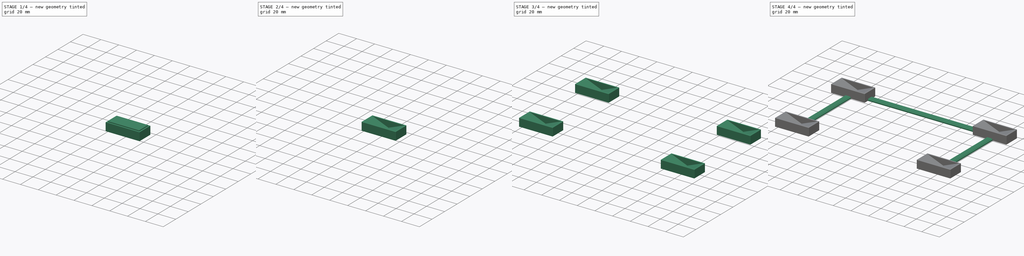
[diagram: build sequence overview — one tinted view per stage of 4, left to right]
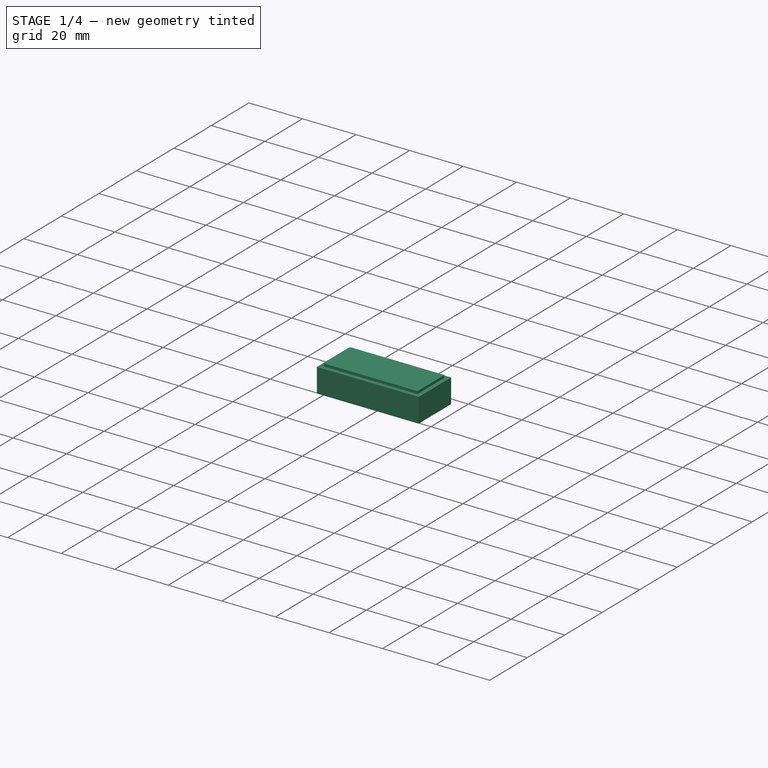
[diagram: stage 1 of 4 — iso view after this stage's code; geometry added in this stage tinted green]
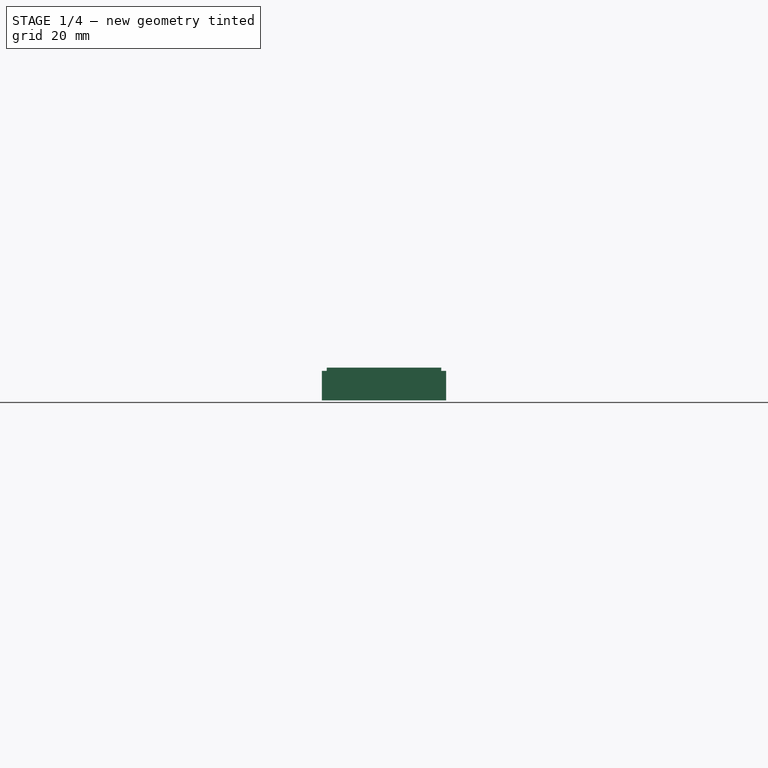
[diagram: stage 1 of 4 — front view after this stage's code; geometry added in this stage tinted green]
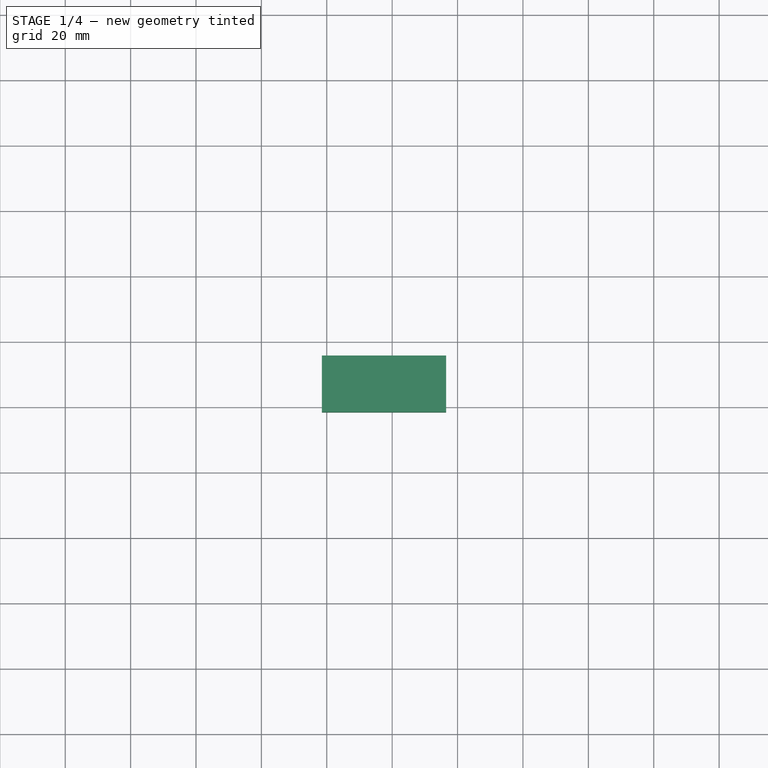
[diagram: stage 1 of 4 — top view after this stage's code; geometry added in this stage tinted green]
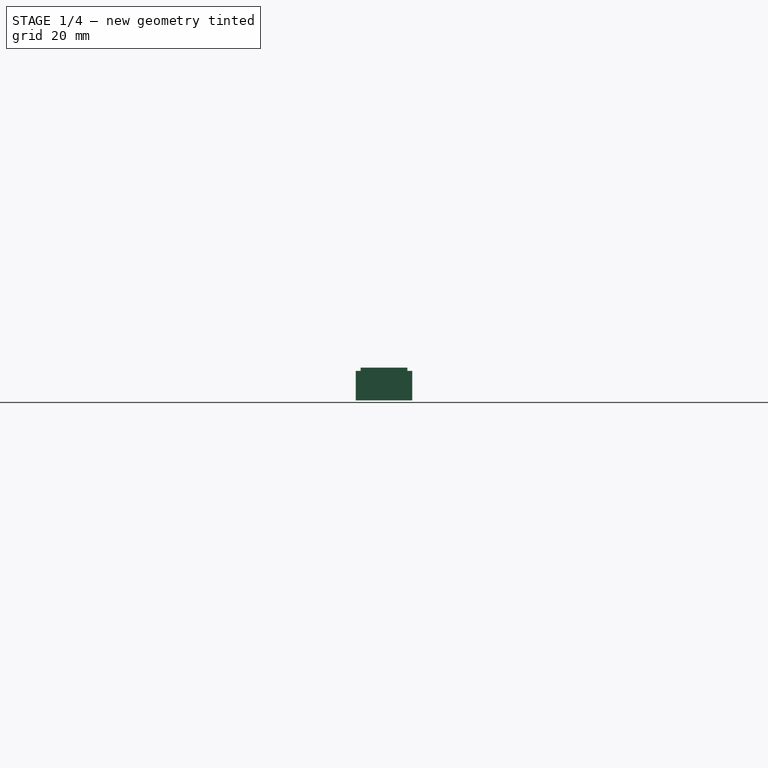
[diagram: stage 1 of 4 — right view after this stage's code; geometry added in this stage tinted green]
FCSTD DOCUMENT  (FreeCAD 0.18R4 (GitTag))
Label: van parking block
License: All rights reserved
LicenseURL: http://en.wikipedia.org/wiki/All_rights_reserved
objects: Sketcher::SketchObject×4, Part::Chamfer×3, Part::Box×2, PartDesign::Body×2, Part::MultiFuse×2, Spreadsheet::Sheet×1, Part::Cut×1, PartDesign::Pad×1, Part::Part2DObjectPython×1, PartDesign::AdditiveLoft×1, Part::FeaturePython×1
note: 20 computed .brp shape members not serialized (recipe doc carries the construction recipe); baked Part::Feature solids carry a one-line shape summary decoded from their .brp

FEATURE [Spreadsheet::Sheet] Spreadsheet  label="Dim"
  cells = A1=tire_thickness; B1(tire_thickness)=14.3; A2=block_width; B2(block_width)=35; A3=block_min; B3(block_min)=2; A4=block_max; B4(block_max)=9; A5=block_outline; B5(block_outline)=1.5; A6=axle_distance; B6(axle_distance)==96 + 64; A7=wheel_distance; B7(wheel_distance)=73; A8=connector_width; B8(connector_width)=7; A9=connector_thickness; B9(connector_thickness)=2
FEATURE [Part::Box] Box  label="Cube"
  AttacherType = Attacher::AttachEngine3D
  Height = 9
  Length = 38
  Placement = pos=(-1.5,-1.5,0) rot=(0,0,1;0rad)
  Width = 17.3
  expr: Placement.Base.y = -Dim.block_outline
  expr: Placement.Base.x = -Dim.block_outline
  expr: Length = Dim.block_width + 2 * Dim.block_outline
  expr: Width = Dim.tire_thickness + 2 * Dim.block_outline
  expr: Height = Dim.block_max
FEATURE [Part::Box] Box001  label="Cube001"
  AttacherType = Attacher::AttachEngine3D
  Height = 10
  Length = 35
  Width = 14.3
  expr: Height = Dim.block_max + 1
  expr: Width = Dim.tire_thickness
  expr: Length = Dim.block_width
FEATURE [Sketcher::SketchObject] Sketch006  label="block_low001"
  Placement = pos=(17.5,0,0) rot=(0.57735,0.57735,0.57735;2.0944rad)
  expr: Placement.Base.x = Dim.block_width / 2
  expr: Constraints[10] = Dim.block_min
  expr: Constraints[9] = Dim.tire_thickness
  sketch-geometry (4):
    g0: LineSegment StartX=0 StartY=0 StartZ=0 EndX=14.3 EndY=0 EndZ=0
    g1: LineSegment StartX=14.3 StartY=0 StartZ=0 EndX=14.3 EndY=2 EndZ=0
    g2: LineSegment StartX=14.3 StartY=2 StartZ=0 EndX=0 EndY=2 EndZ=0
    g3: LineSegment StartX=0 StartY=2 StartZ=0 EndX=0 EndY=0 EndZ=0
  constraints (11):
    c: Coincident(g0,g1)
    c: Coincident(g1,g2)
    c: Coincident(g2,g3)
    c: Coincident(g3,g0)
    c: Horizontal(g0)
    c: Horizontal(g2)
    c: Vertical(g1)
    c: Vertical(g3)
    c: Coincident(g0,g-1)
    c: DistanceX(g2,g2) = 14.3
    c: DistanceY(g1,g1) = 2
FEATURE [Sketcher::SketchObject] Sketch007  label="block_high001"
  MapMode = 5
  Placement = pos=(0,0,0) rot=(0.57735,0.57735,0.57735;2.0944rad)
  Support = -> [YZ_Plane002]
  expr: Constraints[10] = Dim.tire_thickness
  expr: Constraints[9] = Dim.block_max
  sketch-geometry (4):
    g0: LineSegment StartX=0 StartY=0 StartZ=0 EndX=14.3 EndY=0 EndZ=0
    g1: LineSegment StartX=14.3 StartY=0 StartZ=0 EndX=14.3 EndY=9 EndZ=0
    g2: LineSegment StartX=14.3 StartY=9 StartZ=0 EndX=0 EndY=9 EndZ=0
    g3: LineSegment StartX=0 StartY=9 StartZ=0 EndX=0 EndY=0 EndZ=0
  constraints (11):
    c: Coincident(g0,g1)
    c: Coincident(g1,g2)
    c: Coincident(g2,g3)
    c: Coincident(g3,g0)
    c: Horizontal(g0)
    c: Horizontal(g2)
    c: Vertical(g1)
    c: Vertical(g3)
    c: Coincident(g0,g-1)
    c: DistanceY(g3,g3) = 9
    c: DistanceX(g2,g2) = 14.3
FEATURE [Part::Part2DObjectPython] Clone2D001  label="block_high - other001"  # Draft 2D object (typed FeaturePython)
  Fuse = false
  Objects = -> [Sketch007]
  Placement = pos=(35,0,0) rot=(0.57735,0.57735,0.57735;2.0944rad)
  Scale = (1,1,1)
  expr: Placement.Base.x = Dim.block_width
FEATURE [PartDesign::AdditiveLoft] AdditiveLoft001
  Closed = false
  Placement = pos=(0,0,0) rot=(0.57735,0.57735,0.57735;2.0944rad)
  Profile = -> Sketch007
  Refine = true
  Ruled = true
  Sections = -> [Sketch006,Clone2D001]
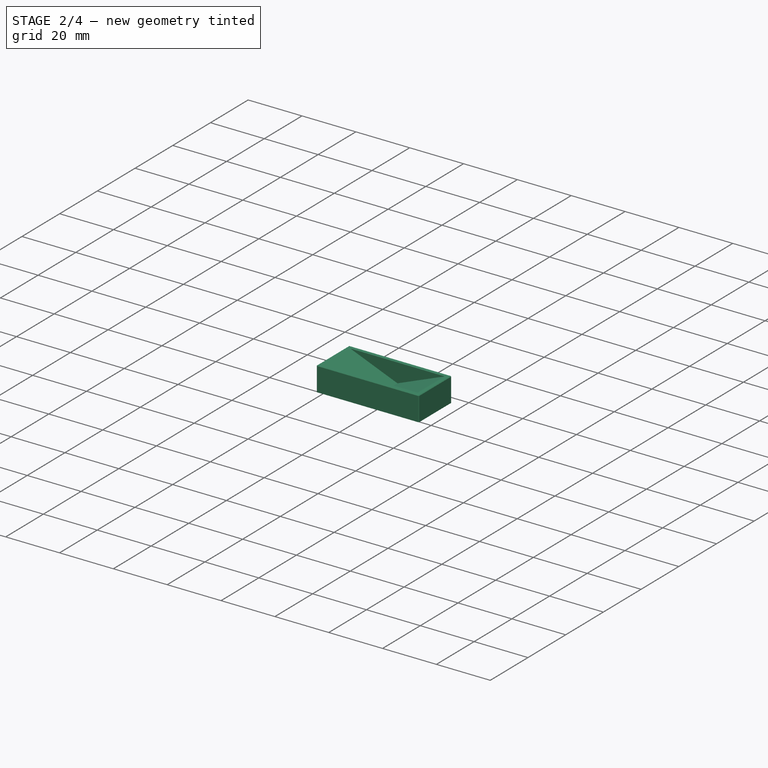
[diagram: stage 2 of 4 — iso view after this stage's code; geometry added in this stage tinted green]
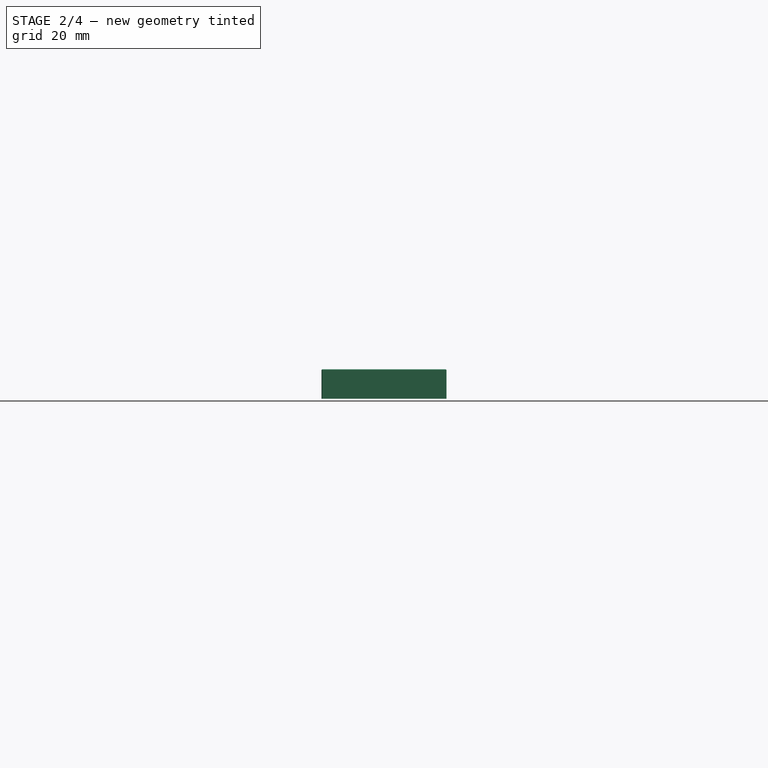
[diagram: stage 2 of 4 — front view after this stage's code; geometry added in this stage tinted green]
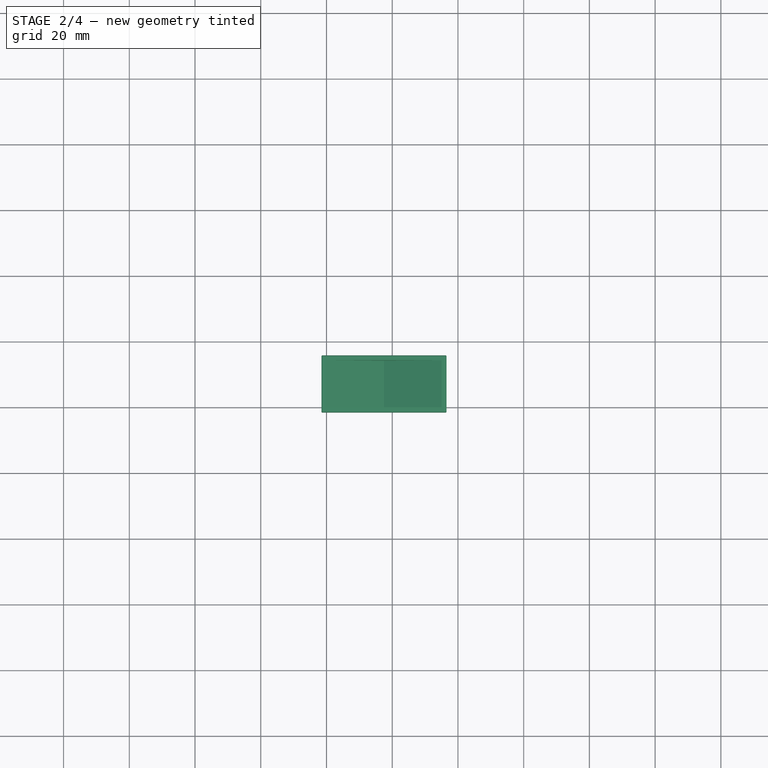
[diagram: stage 2 of 4 — top view after this stage's code; geometry added in this stage tinted green]
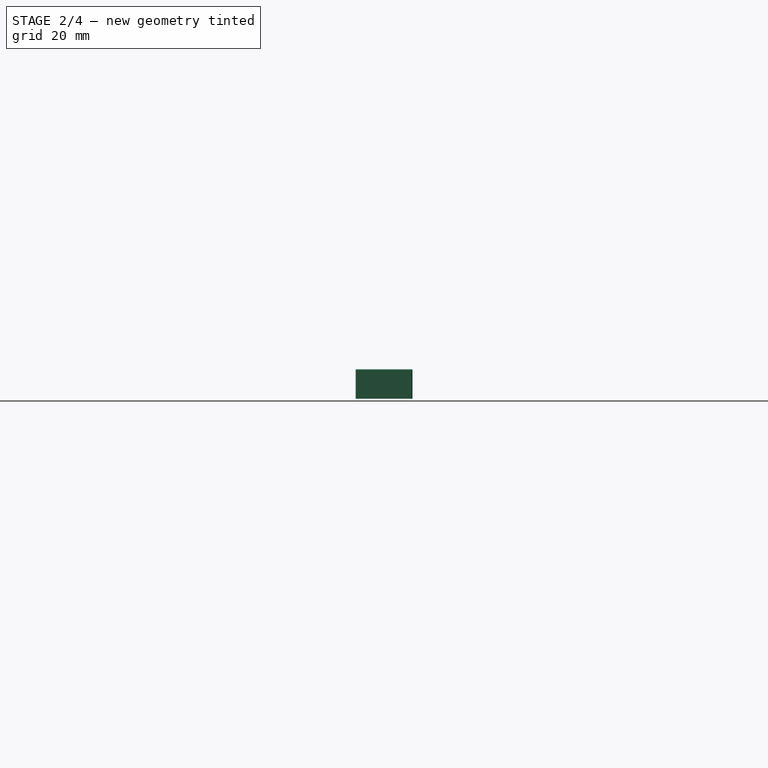
[diagram: stage 2 of 4 — right view after this stage's code; geometry added in this stage tinted green]
FEATURE [Part::Cut] Cut
  Base = -> Box
  Refine = true
  Tool = -> Box001
FEATURE [Part::Chamfer] Chamfer
  Base = -> Cut
  Edges = 4 edges r=0.2: [Edge2,Edge7,Edge8,Edge9]
FEATURE [Part::Chamfer] Chamfer001  label="block outline"
  Base = -> Chamfer
  Edges = 4 edges r=0.2: [Edge1,Edge4,Edge5,Edge17]
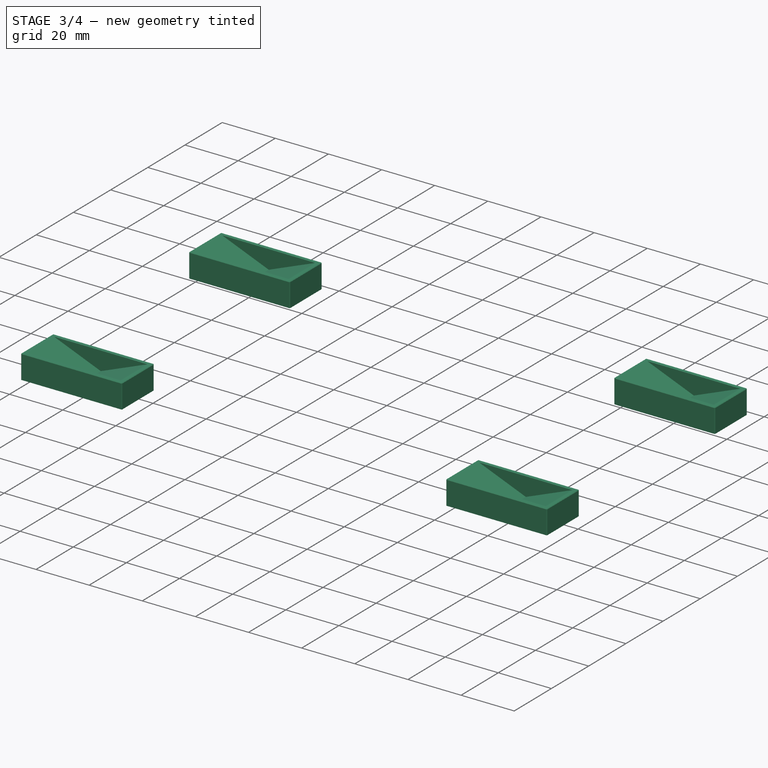
[diagram: stage 3 of 4 — iso view after this stage's code; geometry added in this stage tinted green]
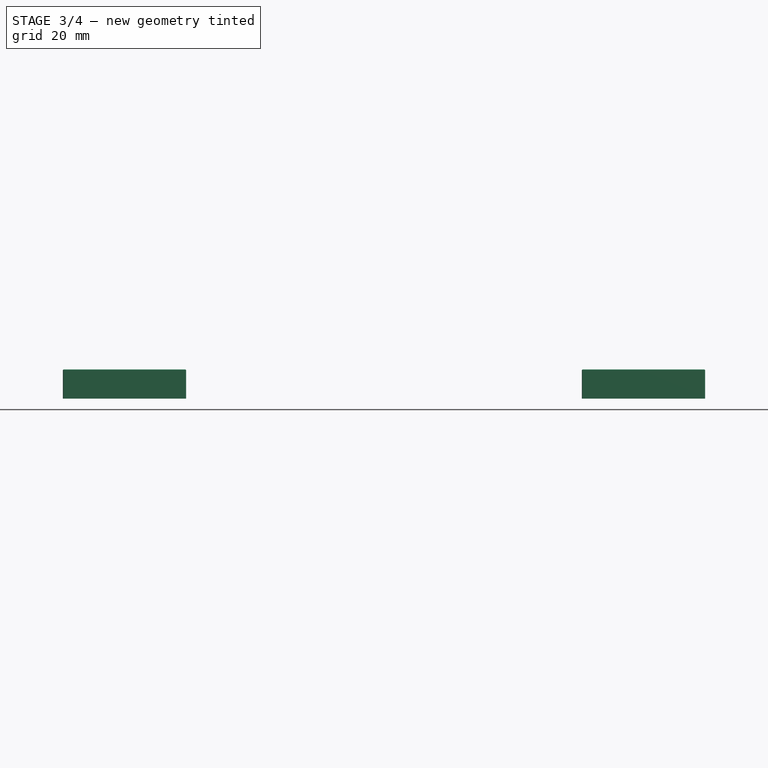
[diagram: stage 3 of 4 — front view after this stage's code; geometry added in this stage tinted green]
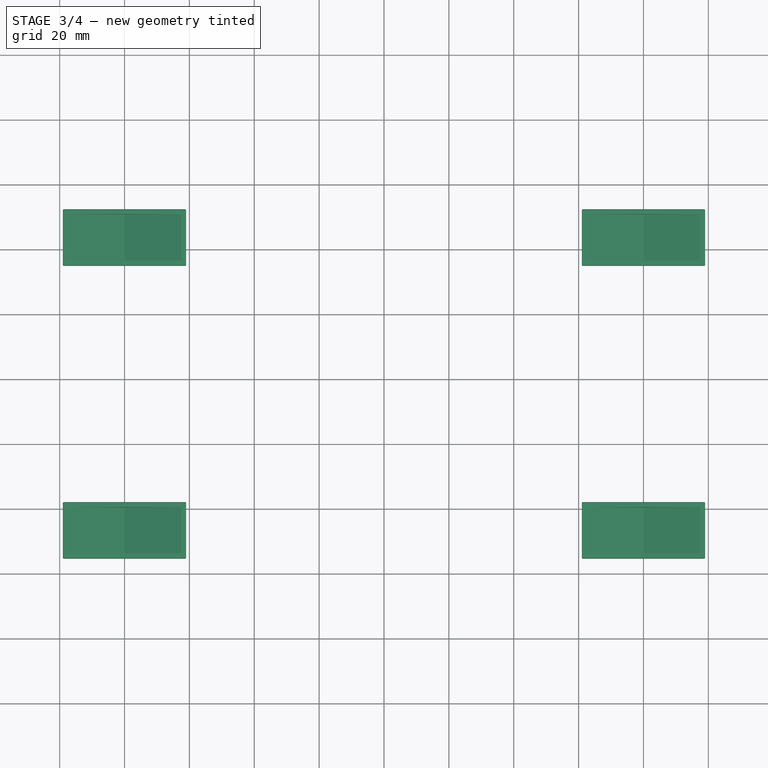
[diagram: stage 3 of 4 — top view after this stage's code; geometry added in this stage tinted green]
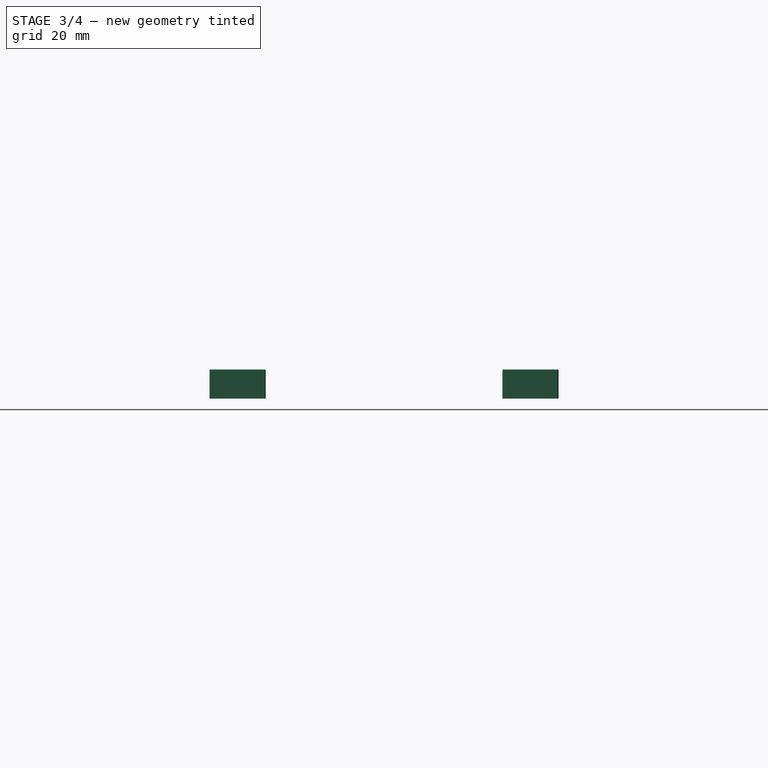
[diagram: stage 3 of 4 — right view after this stage's code; geometry added in this stage tinted green]
FEATURE [PartDesign::Body] Body002  label="block incline"
  Group = -> [AdditiveLoft001,Sketch007,Sketch006,Clone2D001]
  Origin = -> Origin002
  Tip = -> AdditiveLoft001
FEATURE [Part::MultiFuse] Fusion  label="parking block 1"
  Placement = pos=(-97.5,36.5,0) rot=(0,0,1;0rad)
  Refine = true
  Shapes = -> [Body002,Chamfer001]
  expr: Placement.Base.y = Dim.wheel_distance / 2
  expr: Placement.Base.x = -Dim.axle_distance / 2 - Dim.block_width / 2
FEATURE [Part::FeaturePython] Array  # Draft array (typed FeaturePython)
  Angle = 360
  ArrayType = 0
  Axis = (0,0,1)
  Base = -> Fusion
  Center = (0,0,0)
  Fuse = false
  IntervalAxis = (0,0,0)
  IntervalX = (160,0,0)
  IntervalY = (0,-90.3,0)
  IntervalZ = (0,0,0)
  NumberPolar = 1
  NumberX = 2
  NumberY = 2
  NumberZ = 1
  expr: IntervalX.y = 0
  expr: IntervalY.y = -(Dim.wheel_distance + Dim.tire_thickness + 2 * Dim.block_outline)
  expr: IntervalX.x = Dim.axle_distance
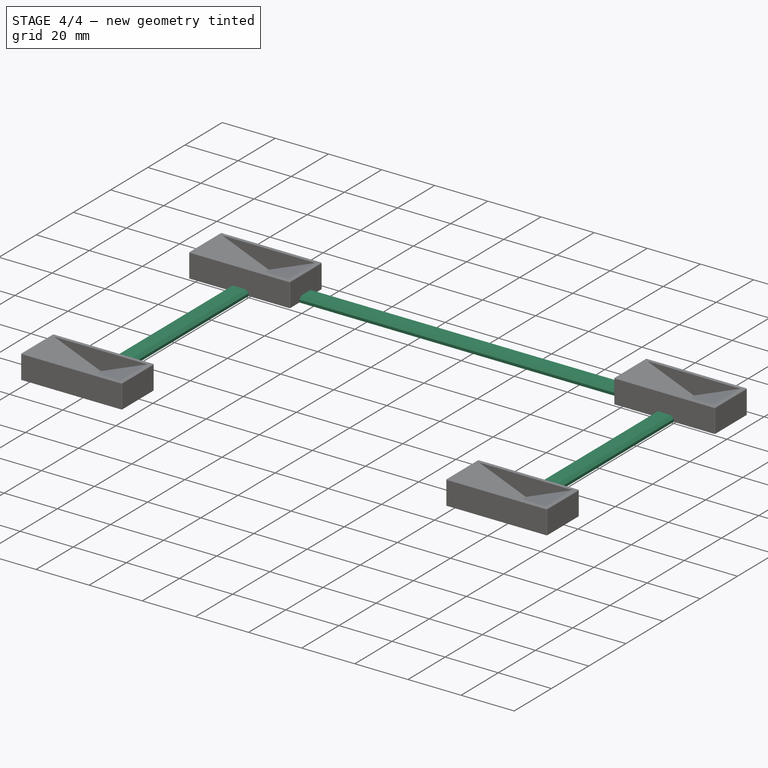
[diagram: stage 4 of 4 — iso view after this stage's code; geometry added in this stage tinted green]
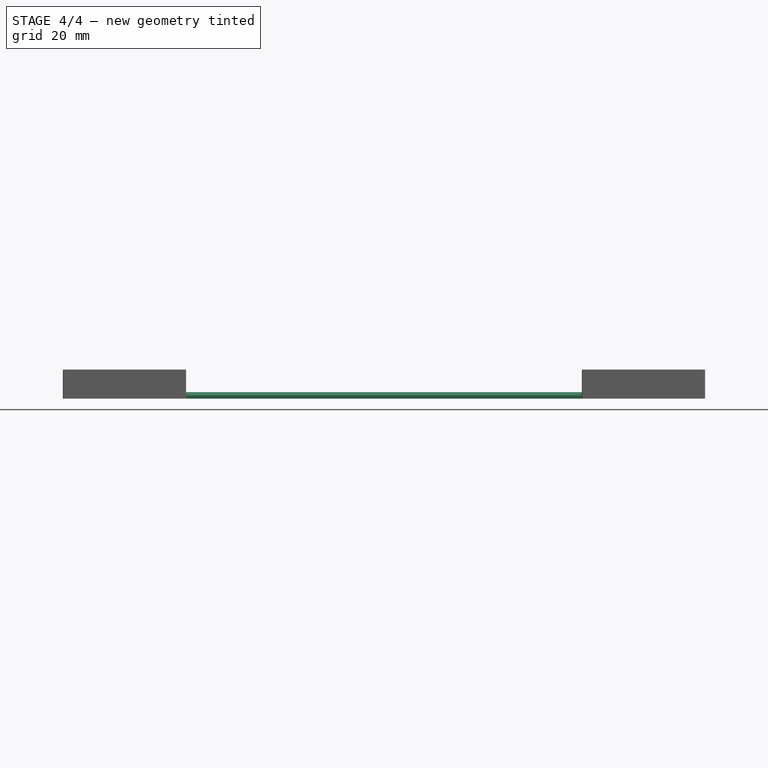
[diagram: stage 4 of 4 — front view after this stage's code; geometry added in this stage tinted green]
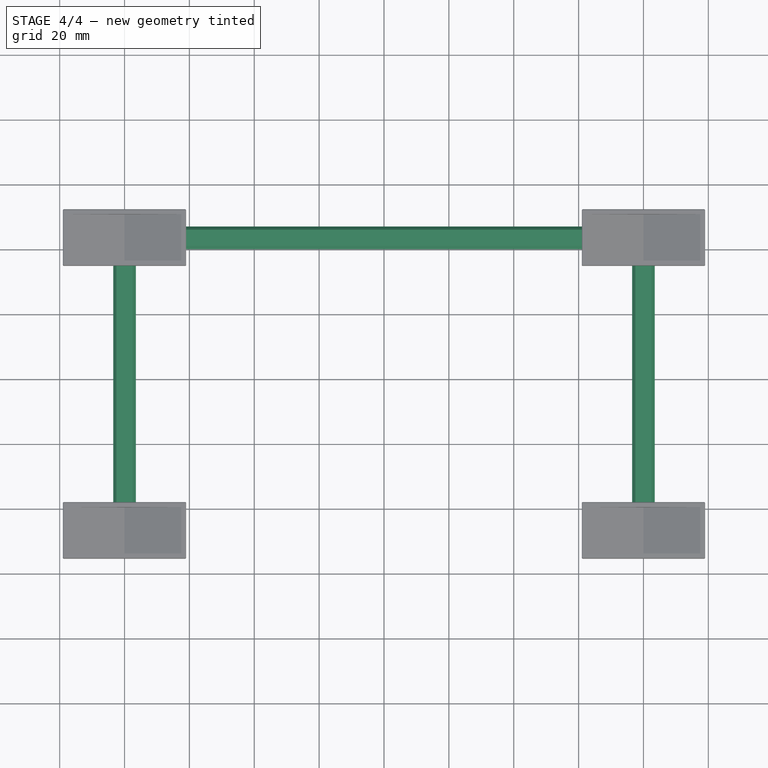
[diagram: stage 4 of 4 — top view after this stage's code; geometry added in this stage tinted green]
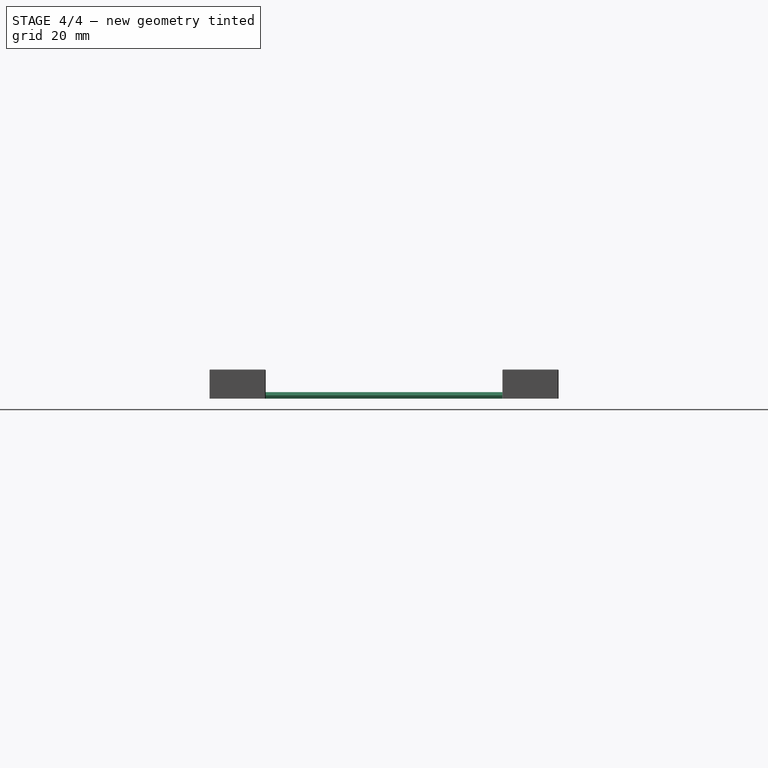
[diagram: stage 4 of 4 — right view after this stage's code; geometry added in this stage tinted green]
FEATURE [Sketcher::SketchObject] Sketch004  label="bounding box"
  expr: Constraints[7] = Dim.wheel_distance + 2 * Dim.tire_thickness + 2 * Dim.block_outline
  expr: Constraints[6] = Dim.axle_distance + Dim.block_width + 2 * Dim.block_outline
  sketch-geometry (4):
    g0: LineSegment StartX=-99 StartY=52.3 StartZ=0 EndX=99 EndY=52.3 EndZ=0
    g1: LineSegment StartX=99 StartY=52.3 StartZ=0 EndX=99 EndY=-52.3 EndZ=0
    g2: LineSegment StartX=99 StartY=-52.3 StartZ=0 EndX=-99 EndY=-52.3 EndZ=0
    g3: LineSegment StartX=-99 StartY=-52.3 StartZ=0 EndX=-99 EndY=52.3 EndZ=0
  constraints (10):
    c: Coincident(g0,g1)
    c: Coincident(g1,g2)
    c: Coincident(g2,g3)
    c: Coincident(g3,g0)
    c: Horizontal(g2)
    c: Vertical(g3)
    c: DistanceX(g2,g2) = 198
    c: DistanceY(g1,g1) = 104.6
    c: Symmetric(g0,g0,g-2)
    c: Symmetric(g0,g1,g-1)
FEATURE [Sketcher::SketchObject] Sketch005  label="connector_sketch"
  MapMode = 5
  Support = -> [XY_Plane001]
  expr: Constraints[23] = Dim.wheel_distance + Dim.tire_thickness + Dim.connector_width
  expr: Constraints[20] = Dim.axle_distance + Dim.connector_width
  expr: Constraints[18] = Dim.connector_width
  sketch-geometry (9):
    g0: LineSegment StartX=-83.5 StartY=-47.15 StartZ=0 EndX=-83.5 EndY=47.15 EndZ=0
    g1: LineSegment StartX=-83.5 StartY=47.15 StartZ=0 EndX=83.5 EndY=47.15 EndZ=0
    g2: LineSegment StartX=83.5 StartY=47.15 StartZ=0 EndX=83.5 EndY=-47.15 EndZ=0
    g3: LineSegment StartX=83.5 StartY=-47.15 StartZ=0 EndX=76.5 EndY=-47.15 EndZ=0
    g4: LineSegment StartX=76.5 StartY=-47.15 StartZ=0 EndX=76.5 EndY=40.15 EndZ=0
    g5: LineSegment StartX=76.5 StartY=40.15 StartZ=0 EndX=-76.5 EndY=40.15 EndZ=0
    g6: LineSegment StartX=-76.5 StartY=40.15 StartZ=0 EndX=-76.5 EndY=-47.15 EndZ=0
    g7: LineSegment StartX=-76.5 StartY=-47.15 StartZ=0 EndX=-83.5 EndY=-47.15 EndZ=0
    g8: LineSegment [constr] StartX=-76.5 StartY=40.15 StartZ=0 EndX=-76.5 EndY=47.15 EndZ=0
  constraints (25):
    c: Vertical(g0)
    c: Coincident(g0,g1)
    c: Coincident(g1,g2)
    c: Coincident(g2,g3)
    c: Horizontal(g3)
    c: Coincident(g3,g4)
    c: Vertical(g4)
    c: Coincident(g4,g5)
    c: Horizontal(g5)
    c: Coincident(g5,g6)
    c: Vertical(g6)
    c: Coincident(g6,g7)
    c: Coincident(g7,g0)
    c: Horizontal(g7)
    c: Coincident(g8,g5)
    c: Vertical(g8)
    c: Equal(g8,g7)
    c: Equal(g7,g3)
    c: DistanceY(g8,g8) = 7
    c: PointOnObject(g8,g1)
    c: DistanceX(g1,g1) = 167
    c: Symmetric(g1,g0,g-2)
    c: Symmetric(g1,g2,g-1)
    c: DistanceY(g2,g2) = 94.3
    c: Equal(g2,g0)
FEATURE [PartDesign::Pad] Pad
  Length = 2
  Length2 = 100
  Profile = -> Sketch005
  Refine = true
  Type = 0
  expr: Length = Dim.connector_thickness
FEATURE [PartDesign::Body] Body001  label="connector"
  Group = -> [Sketch005,Pad]
  Origin = -> Origin001
  Tip = -> Pad
FEATURE [Part::Chamfer] Chamfer002
  Base = -> Pad
  Edges = 6 edges r=1: [Edge4,Edge7,Edge10,Edge16,Edge19,Edge22]
FEATURE [Part::MultiFuse] Fusion001  label="parking block - all"
  Refine = true
  Shapes = -> [Chamfer002,Array]
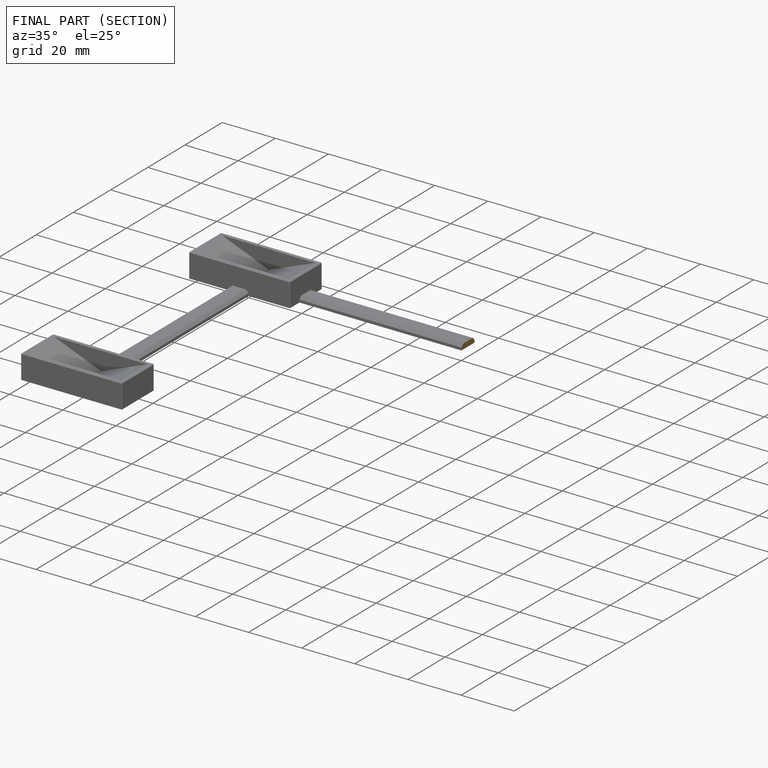
[diagram: finished part — half-section view (interior)]
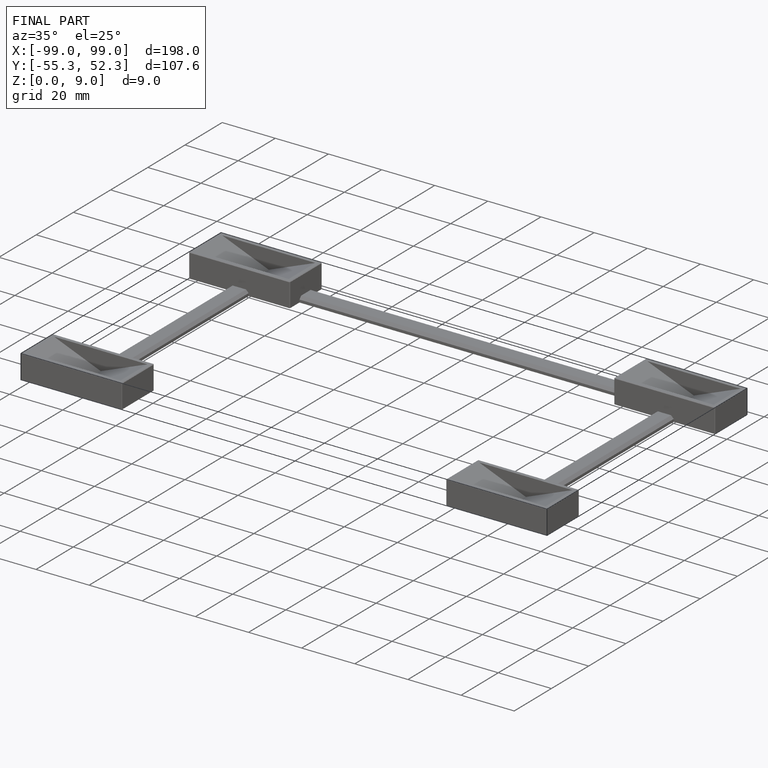
[diagram: finished part — iso view with bounding-box wireframe]
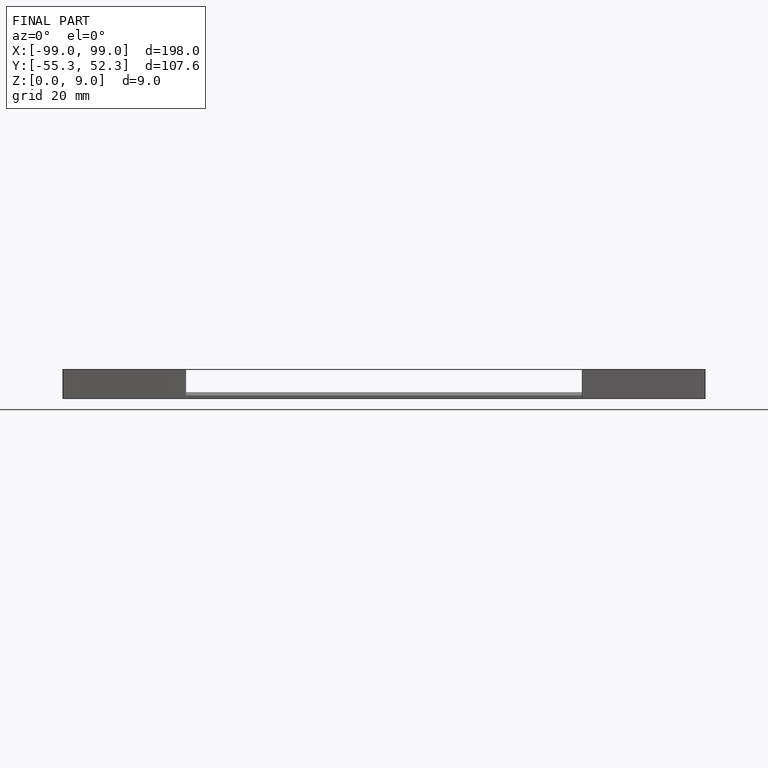
[diagram: finished part — front view with bounding-box wireframe]
